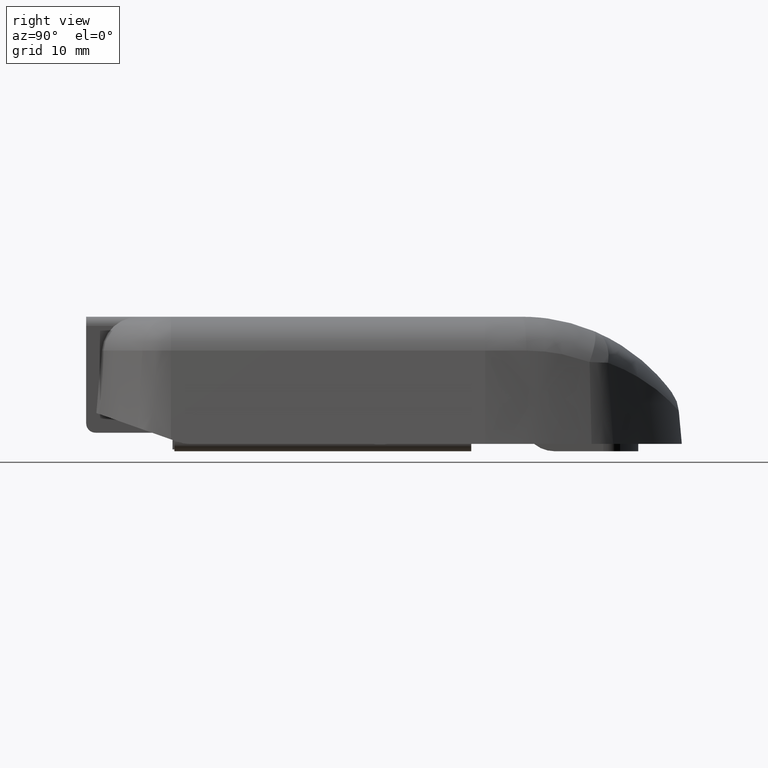
[diagram: clean part render]
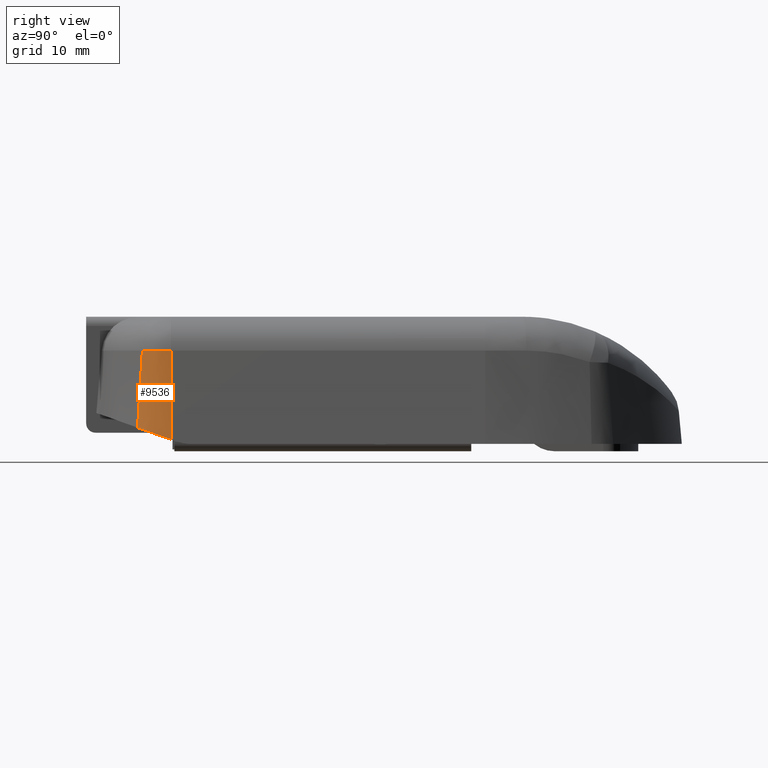
[diagram: same view with one face highlighted and labeled with its STEP entity id]
A machine part, right view. The second image highlights one B-rep face of the part: STEP entity #9536.
In plain terms, the highlighted conical surface has half-angle 5 deg.
Its self-contained STEP definition (entity closure, byte-faithful):
#67 = FACE_OUTER_BOUND ( 'NONE', #572, .T. ) ;
#572 = EDGE_LOOP ( 'NONE', ( #6930, #24644, #15255, #21949 ) ) ;
#606 = CARTESIAN_POINT ( 'NONE',  ( 19.29999999999999000, 4.287857357185717300, 0.0000000000000000000 ) ) ;
#3227 = CARTESIAN_POINT ( 'NONE',  ( 21.61389246057894600, 5.756905738194975100, -12.73184908406881300 ) ) ;
#3256 = VECTOR ( 'NONE', #19300, 1000.000000000000100 ) ;
#3359 = DIRECTION ( 'NONE',  ( -0.0000000000000000000, -0.0000000000000000000, -1.000000000000000000 ) ) ;
#3605 = AXIS2_PLACEMENT_3D ( 'NONE', #9636, #3359, #21985 ) ;
#6172 = CARTESIAN_POINT ( 'NONE',  ( 16.50000000000000000, 7.144428728602862000, -3.651377029009366600 ) ) ;
#6930 = ORIENTED_EDGE ( 'NONE', *, *, #19583, .F. ) ;
#7334 = CARTESIAN_POINT ( 'NONE',  ( 21.04326382708665500, 4.491548221595970800, -12.28525231350445600 ) ) ;
#8248 = DIRECTION ( 'NONE',  ( -1.000000000000000000, 0.0000000000000000000, 0.0000000000000000000 ) ) ;
#8573 =( BOUNDED_CURVE ( )  B_SPLINE_CURVE ( 3, ( #13487, #3227, #7334, #21770 ),
 .UNSPECIFIED., .F., .F. ) 
 B_SPLINE_CURVE_WITH_KNOTS ( ( 4, 4 ),
 ( 1.601679587677953500, 2.387578509889556800 ),
 .UNSPECIFIED. ) 
 CURVE ( )  GEOMETRIC_REPRESENTATION_ITEM ( )  RATIONAL_B_SPLINE_CURVE ( ( 1.000000000000000000, 0.9491891250016403200, 0.9491891250016403200, 1.000000000000000000 ) ) 
 REPRESENTATION_ITEM ( '' )  );
#9536 = ADVANCED_FACE ( 'NONE', ( #67 ), #26136, .T. ) ;
#9636 = CARTESIAN_POINT ( 'NONE',  ( 16.50000000000000000, 7.144428728602862000, 0.0000000000000000000 ) ) ;
#12911 = LINE ( 'NONE', #17231, #3256 ) ;
#12915 = DIRECTION ( 'NONE',  ( -0.06100901992336080900, 0.06224164989688951700, 0.9961946980917455500 ) ) ;
#13487 = CARTESIAN_POINT ( 'NONE',  ( 21.65673688365268700, 7.144428728602862000, -13.22156308068336000 ) ) ;
#14884 = VECTOR ( 'NONE', #12915, 1000.000000000000100 ) ;
#15210 = CARTESIAN_POINT ( 'NONE',  ( 20.81945409629729200, 7.144428728602862000, -3.651377029009366600 ) ) ;
#15255 = ORIENTED_EDGE ( 'NONE', *, *, #26023, .T. ) ;
#17231 = CARTESIAN_POINT ( 'NONE',  ( 20.50000000000000000, 7.144428728602862000, -7.530789258985405000E-017 ) ) ;
#17496 = EDGE_CURVE ( 'NONE', #23797, #24878, #12911, .T. ) ;
#19081 = LINE ( 'NONE', #606, #14884 ) ;
#19300 = DIRECTION ( 'NONE',  ( -0.08715574274765837400, 0.0000000000000000000, 0.9961946980917455500 ) ) ;
#19476 = CIRCLE ( 'NONE', #19647, 4.319454096297287800 ) ;
#19583 = EDGE_CURVE ( 'NONE', #23797, #22230, #8573, .T. ) ;
#19647 = AXIS2_PLACEMENT_3D ( 'NONE', #6172, #20606, #8248 ) ;
#20241 = CARTESIAN_POINT ( 'NONE',  ( 20.03183340367640500, 3.541237946618287900, -11.94984868704174900 ) ) ;
#20606 = DIRECTION ( 'NONE',  ( -0.0000000000000000000, -0.0000000000000000000, -1.000000000000000000 ) ) ;
#21770 = CARTESIAN_POINT ( 'NONE',  ( 20.03183340367640500, 3.541237946618287900, -11.94984868704174900 ) ) ;
#21949 = ORIENTED_EDGE ( 'NONE', *, *, #25356, .F. ) ;
#21985 = DIRECTION ( 'NONE',  ( 1.000000000000000000, 0.0000000000000000000, 0.0000000000000000000 ) ) ;
#22230 = VERTEX_POINT ( 'NONE', #20241 ) ;
#23797 = VERTEX_POINT ( 'NONE', #24756 ) ;
#24636 = VERTEX_POINT ( 'NONE', #24730 ) ;
#24644 = ORIENTED_EDGE ( 'NONE', *, *, #17496, .T. ) ;
#24730 = CARTESIAN_POINT ( 'NONE',  ( 19.52361786740809200, 4.059721500694524600, -3.651377029009366600 ) ) ;
#24756 = CARTESIAN_POINT ( 'NONE',  ( 21.65673688365268700, 7.144428728602862000, -13.22156308068336000 ) ) ;
#24878 = VERTEX_POINT ( 'NONE', #15210 ) ;
#25356 = EDGE_CURVE ( 'NONE', #22230, #24636, #19081, .T. ) ;
#26023 = EDGE_CURVE ( 'NONE', #24878, #24636, #19476, .T. ) ;
#26136 = CONICAL_SURFACE ( 'NONE', #3605, 4.000000000000000000, 0.08726646259971666800 ) ;